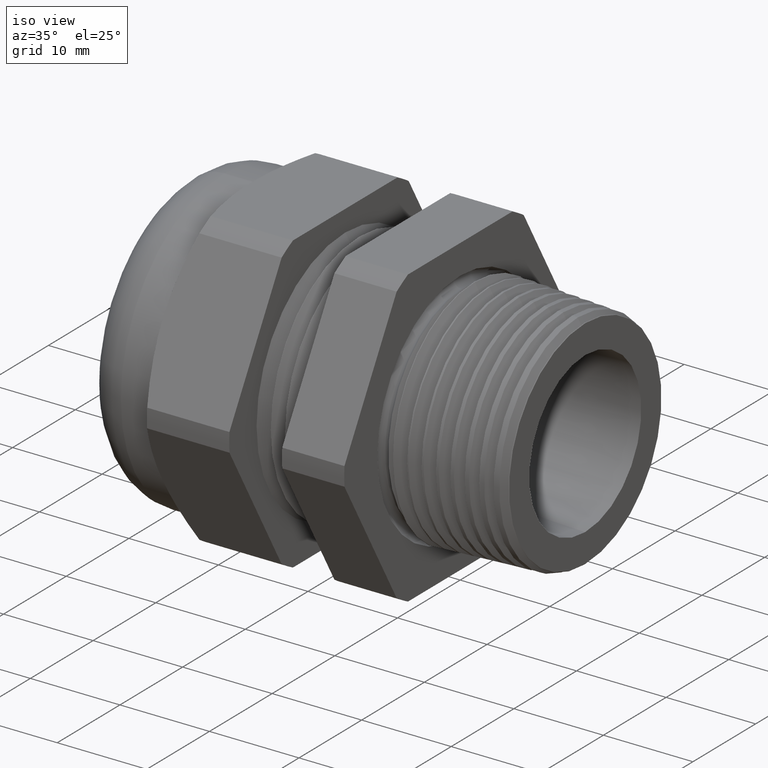
[diagram: clean part render]
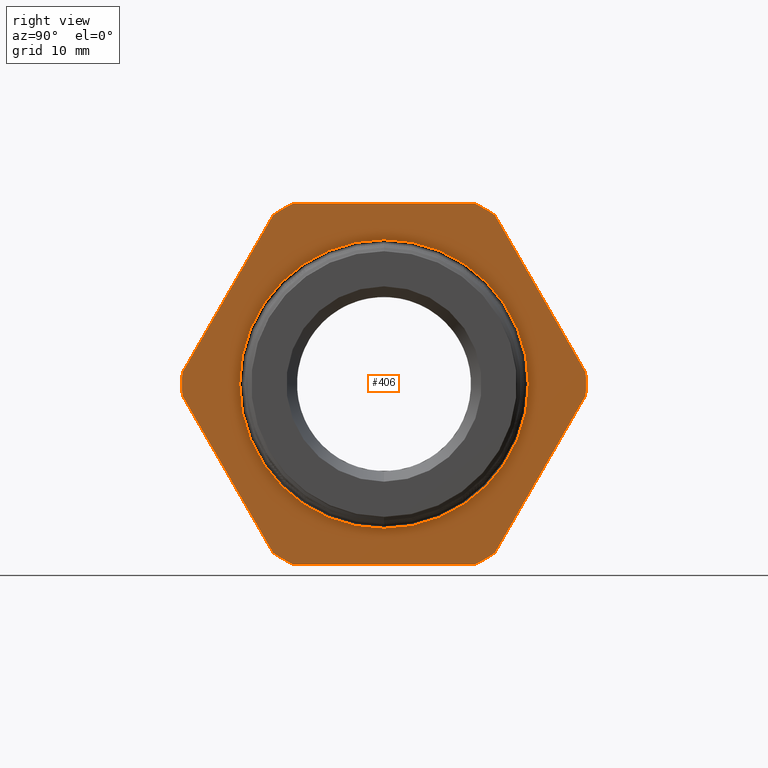
[diagram: tour spotlight — one face highlighted and labeled with its STEP entity id]
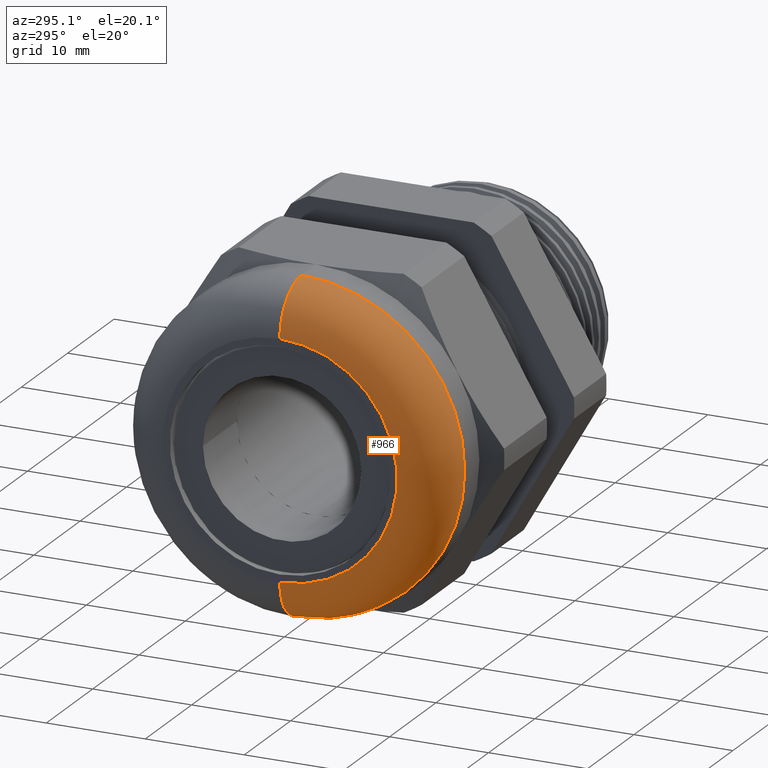
[diagram: tour spotlight — one face highlighted and labeled with its STEP entity id]
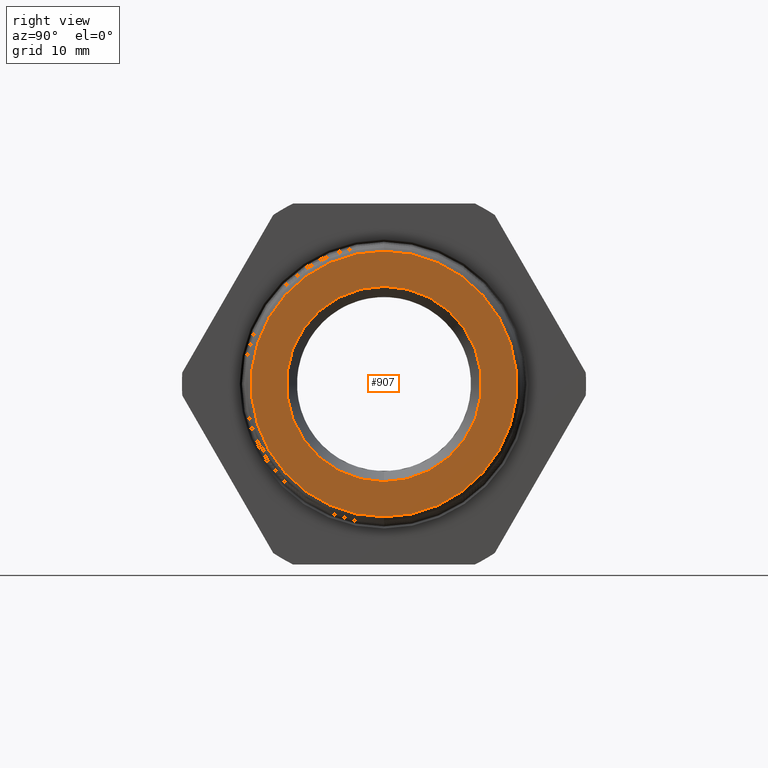
[diagram: tour spotlight — one face highlighted and labeled with its STEP entity id]
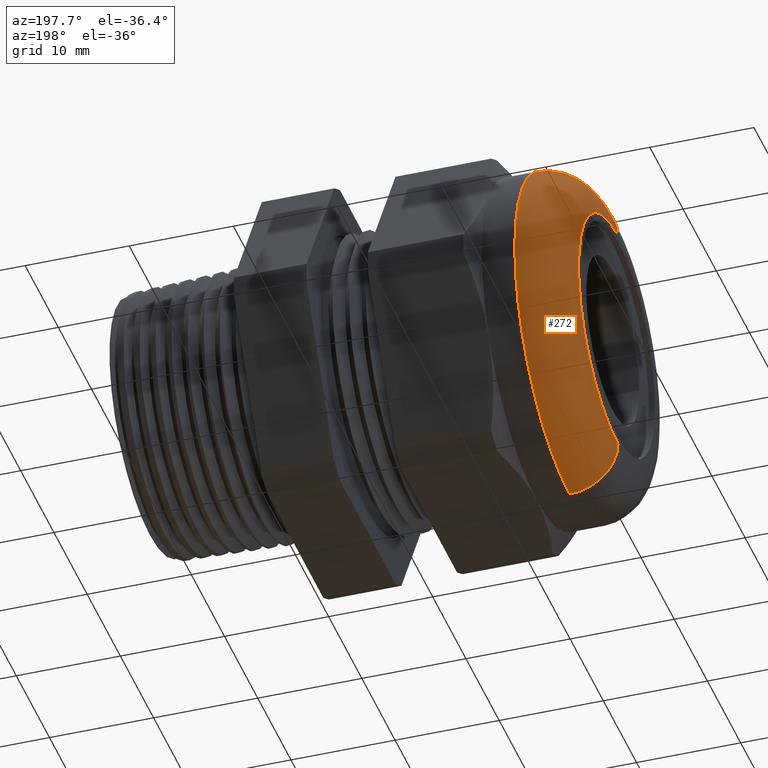
[diagram: tour spotlight — one face highlighted and labeled with its STEP entity id]
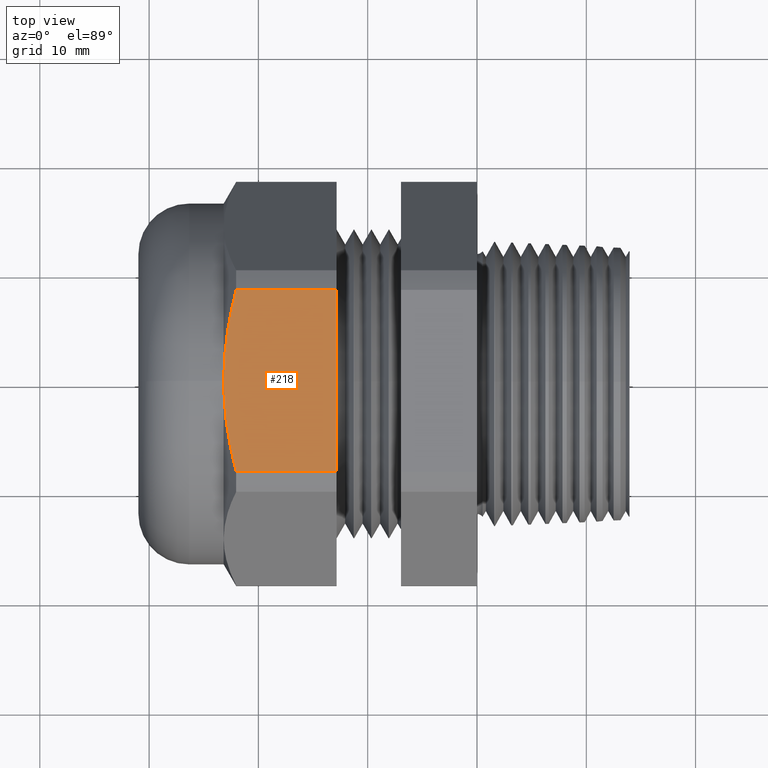
[diagram: tour spotlight — one face highlighted and labeled with its STEP entity id]
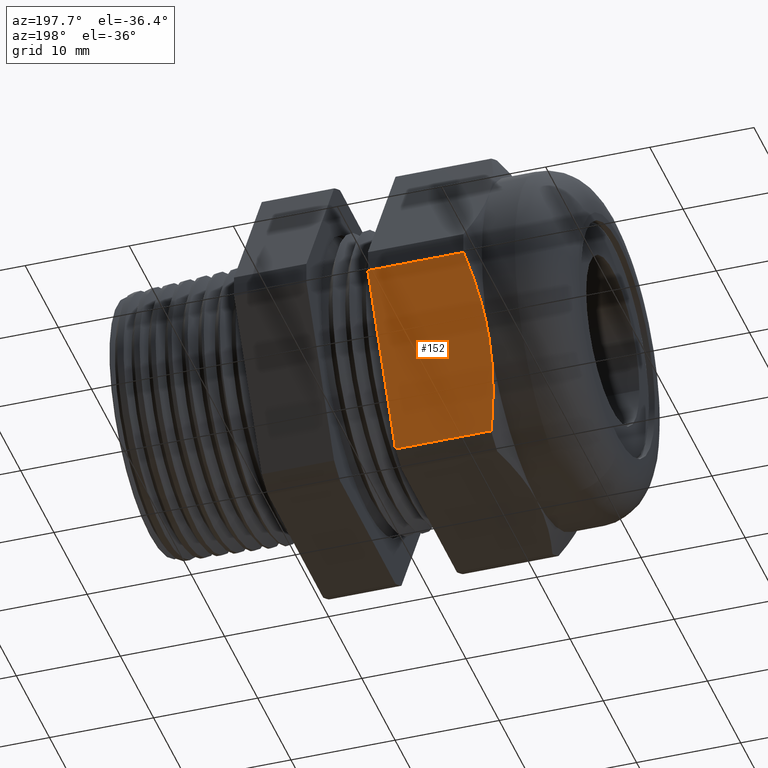
[diagram: tour spotlight — one face highlighted and labeled with its STEP entity id]
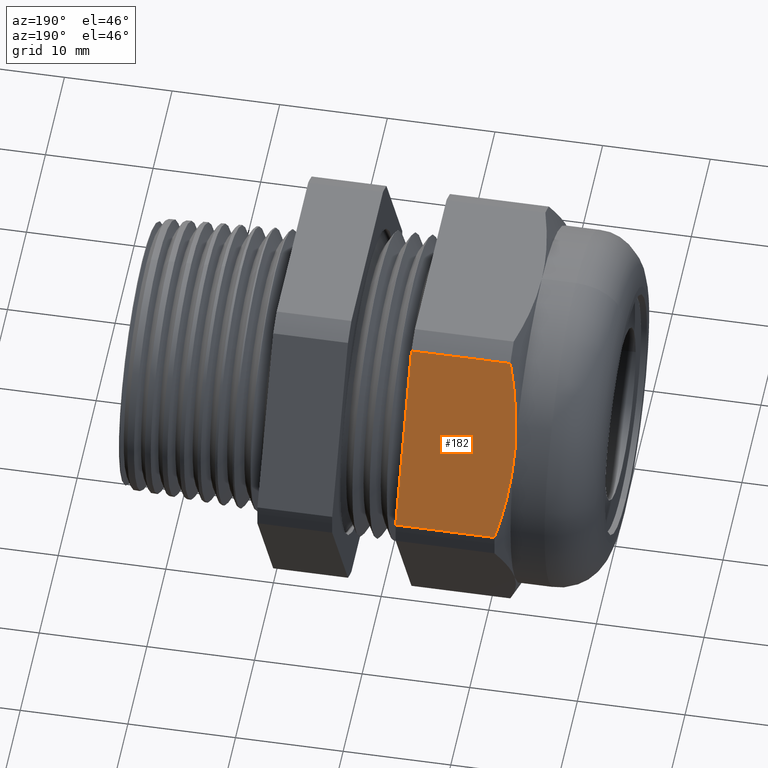
[diagram: tour spotlight — one face highlighted and labeled with its STEP entity id]
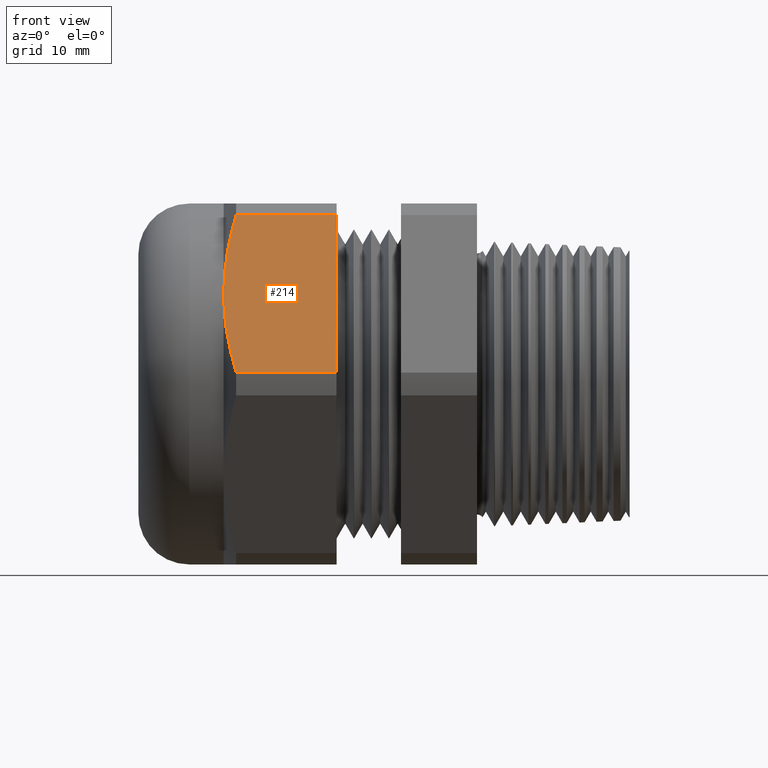
[diagram: tour spotlight — one face highlighted and labeled with its STEP entity id]
A machine part: a face-by-face anatomy tour. The part has 136 B-rep faces; the first image is the clean iso view, then the 8 largest visible faces are spotlighted one at a time (largest first), each with its STEP entity span.

Face 1 — right view, entity #406. In plain terms, the highlighted planar face has unit normal (-1, 0, 0).
Definition (entity closure, byte-faithful):
#1 = EDGE_CURVE ( 'NONE', #6, #106, #1298, .T. ) ;
#3 = ORIENTED_EDGE ( 'NONE', *, *, #1, .T. ) ;
#6 = VERTEX_POINT ( 'NONE', #1356 ) ;
#7 = ORIENTED_EDGE ( 'NONE', *, *, #12, .F. ) ;
#8 = ORIENTED_EDGE ( 'NONE', *, *, #13, .T. ) ;
#12 = EDGE_CURVE ( 'NONE', #6, #420, #1355, .T. ) ;
#13 = EDGE_CURVE ( 'NONE', #419, #420, #1350, .T. ) ;
#102 = VERTEX_POINT ( 'NONE', #1488 ) ;
#103 = VERTEX_POINT ( 'NONE', #1487 ) ;
#104 = EDGE_CURVE ( 'NONE', #103, #106, #1486, .T. ) ;
#105 = ORIENTED_EDGE ( 'NONE', *, *, #104, .F. ) ;
#106 = VERTEX_POINT ( 'NONE', #1545 ) ;
#347 = ORIENTED_EDGE ( 'NONE', *, *, #348, .T. ) ;
#348 = EDGE_CURVE ( 'NONE', #103, #102, #2011, .T. ) ;
#349 = ORIENTED_EDGE ( 'NONE', *, *, #350, .F. ) ;
#350 = EDGE_CURVE ( 'NONE', #351, #102, #2002, .T. ) ;
#351 = VERTEX_POINT ( 'NONE', #2064 ) ;
#352 = ORIENTED_EDGE ( 'NONE', *, *, #370, .T. ) ;
#353 = VERTEX_POINT ( 'NONE', #2063 ) ;
#359 = ORIENTED_EDGE ( 'NONE', *, *, #360, .F. ) ;
#360 = EDGE_CURVE ( 'NONE', #745, #751, #2055, .T. ) ;
#361 = ORIENTED_EDGE ( 'NONE', *, *, #744, .F. ) ;
#370 = EDGE_CURVE ( 'NONE', #351, #353, #2035, .T. ) ;
#371 = ORIENTED_EDGE ( 'NONE', *, *, #372, .F. ) ;
#372 = EDGE_CURVE ( 'NONE', #409, #353, #2092, .T. ) ;
#373 = EDGE_LOOP ( 'NONE', ( #359, #361 ) ) ;
#406 = ADVANCED_FACE ( 'NONE', ( #2152, #2151 ), #2150, .F. ) ;
#407 = ORIENTED_EDGE ( 'NONE', *, *, #408, .T. ) ;
#408 = EDGE_CURVE ( 'NONE', #409, #410, #2145, .T. ) ;
#409 = VERTEX_POINT ( 'NONE', #2141 ) ;
#410 = VERTEX_POINT ( 'NONE', #2140 ) ;
#411 = ORIENTED_EDGE ( 'NONE', *, *, #412, .F. ) ;
#412 = EDGE_CURVE ( 'NONE', #413, #410, #2139, .T. ) ;
#413 = VERTEX_POINT ( 'NONE', #2134 ) ;
#414 = ORIENTED_EDGE ( 'NONE', *, *, #415, .T. ) ;
#415 = EDGE_CURVE ( 'NONE', #413, #416, #2133, .T. ) ;
#416 = VERTEX_POINT ( 'NONE', #2129 ) ;
#417 = ORIENTED_EDGE ( 'NONE', *, *, #418, .F. ) ;
#418 = EDGE_CURVE ( 'NONE', #419, #416, #2193, .T. ) ;
#419 = VERTEX_POINT ( 'NONE', #2188 ) ;
#420 = VERTEX_POINT ( 'NONE', #2187 ) ;
#424 = EDGE_LOOP ( 'NONE', ( #407, #411, #414, #417, #8, #7, #3, #105, #347, #349, #352, #371 ) ) ;
#744 = EDGE_CURVE ( 'NONE', #751, #745, #2816, .T. ) ;
#745 = VERTEX_POINT ( 'NONE', #2811 ) ;
#751 = VERTEX_POINT ( 'NONE', #2799 ) ;
#1295 = DIRECTION ( 'NONE',  ( 0.0000000000000000000, -0.5000000000000003300, 0.8660254037844383700 ) ) ;
#1296 = VECTOR ( 'NONE', #1295, 39.37007874015748100 ) ;
#1297 = CARTESIAN_POINT ( 'NONE',  ( 0.0000000000000000000, 0.7268402752278256800, 0.04107571431805962700 ) ) ;
#1298 = LINE ( 'NONE', #1297, #1296 ) ;
#1347 = DIRECTION ( 'NONE',  ( 0.0000000000000000000, 0.5000000000000001100, 0.8660254037844386000 ) ) ;
#1348 = VECTOR ( 'NONE', #1347, 39.37007874015748100 ) ;
#1349 = CARTESIAN_POINT ( 'NONE',  ( 0.0000000000000000000, 0.3989927496919443200, -0.6089242856819405700 ) ) ;
#1350 = LINE ( 'NONE', #1349, #1348 ) ;
#1351 = DIRECTION ( 'NONE',  ( 0.0000000000000000000, 0.0000000000000000000, 1.000000000000000000 ) ) ;
#1352 = DIRECTION ( 'NONE',  ( -1.000000000000000000, 0.0000000000000000000, 0.0000000000000000000 ) ) ;
#1353 = CARTESIAN_POINT ( 'NONE',  ( 0.0000000000000000000, 0.0000000000000000000, 0.0000000000000000000 ) ) ;
#1354 = AXIS2_PLACEMENT_3D ( 'NONE', #1353, #1352, #1351 ) ;
#1355 = CIRCLE ( 'NONE', #1354, 0.7280000000000000900 ) ;
#1356 = CARTESIAN_POINT ( 'NONE',  ( 0.0000000000000000000, 0.7268402752278255700, 0.04107571431805956400 ) ) ;
#1485 = AXIS2_PLACEMENT_3D ( 'NONE', #1548, #1547, #1546 ) ;
#1486 = CIRCLE ( 'NONE', #1485, 0.7280000000000000900 ) ;
#1487 = CARTESIAN_POINT ( 'NONE',  ( 0.0000000000000000000, 0.3278475255358810900, 0.6500000000000000200 ) ) ;
#1488 = CARTESIAN_POINT ( 'NONE',  ( 0.0000000000000000000, -0.3278475255358810900, 0.6500000000000000200 ) ) ;
#1516 = DIRECTION ( 'NONE',  ( 0.0000000000000000000, 0.0000000000000000000, 1.000000000000000000 ) ) ;
#1517 = DIRECTION ( 'NONE',  ( -1.000000000000000000, 0.0000000000000000000, 0.0000000000000000000 ) ) ;
#1518 = CARTESIAN_POINT ( 'NONE',  ( 0.0000000000000000000, 0.0000000000000000000, 0.0000000000000000000 ) ) ;
#1545 = CARTESIAN_POINT ( 'NONE',  ( 0.0000000000000000000, 0.3989927496919443200, 0.6089242856819405700 ) ) ;
#1546 = DIRECTION ( 'NONE',  ( 0.0000000000000000000, 0.0000000000000000000, 1.000000000000000000 ) ) ;
#1547 = DIRECTION ( 'NONE',  ( -1.000000000000000000, 0.0000000000000000000, 0.0000000000000000000 ) ) ;
#1548 = CARTESIAN_POINT ( 'NONE',  ( 0.0000000000000000000, 0.0000000000000000000, 0.0000000000000000000 ) ) ;
#2001 = AXIS2_PLACEMENT_3D ( 'NONE', #1518, #1517, #1516 ) ;
#2002 = CIRCLE ( 'NONE', #2001, 0.7280000000000000900 ) ;
#2004 = DIRECTION ( 'NONE',  ( 0.0000000000000000000, -1.000000000000000000, 0.0000000000000000000 ) ) ;
#2005 = VECTOR ( 'NONE', #2004, 39.37007874015748100 ) ;
#2006 = CARTESIAN_POINT ( 'NONE',  ( 0.0000000000000000000, 0.3278475255358810900, 0.6500000000000000200 ) ) ;
#2011 = LINE ( 'NONE', #2006, #2005 ) ;
#2035 = LINE ( 'NONE', #2095, #2094 ) ;
#2047 = DIRECTION ( 'NONE',  ( 0.0000000000000000000, 0.0000000000000000000, 1.000000000000000000 ) ) ;
#2048 = DIRECTION ( 'NONE',  ( 1.000000000000000000, 0.0000000000000000000, 0.0000000000000000000 ) ) ;
#2049 = CARTESIAN_POINT ( 'NONE',  ( -1.707404996040164500E-017, 0.0000000000000000000, 0.0000000000000000000 ) ) ;
#2050 = AXIS2_PLACEMENT_3D ( 'NONE', #2049, #2048, #2047 ) ;
#2055 = CIRCLE ( 'NONE', #2050, 0.5199999999999999100 ) ;
#2063 = CARTESIAN_POINT ( 'NONE',  ( 0.0000000000000000000, -0.7268402752278255700, 0.04107571431805941800 ) ) ;
#2064 = CARTESIAN_POINT ( 'NONE',  ( 0.0000000000000000000, -0.3989927496919443200, 0.6089242856819405700 ) ) ;
#2088 = DIRECTION ( 'NONE',  ( 0.0000000000000000000, 0.0000000000000000000, 1.000000000000000000 ) ) ;
#2089 = DIRECTION ( 'NONE',  ( -1.000000000000000000, 0.0000000000000000000, 0.0000000000000000000 ) ) ;
#2090 = CARTESIAN_POINT ( 'NONE',  ( 0.0000000000000000000, 0.0000000000000000000, 0.0000000000000000000 ) ) ;
#2091 = AXIS2_PLACEMENT_3D ( 'NONE', #2090, #2089, #2088 ) ;
#2092 = CIRCLE ( 'NONE', #2091, 0.7280000000000000900 ) ;
#2093 = DIRECTION ( 'NONE',  ( 0.0000000000000000000, -0.4999999999999998300, -0.8660254037844386000 ) ) ;
#2094 = VECTOR ( 'NONE', #2093, 39.37007874015748900 ) ;
#2095 = CARTESIAN_POINT ( 'NONE',  ( 0.0000000000000000000, -0.3989927496919445400, 0.6089242856819404600 ) ) ;
#2129 = CARTESIAN_POINT ( 'NONE',  ( 0.0000000000000000000, 0.3278475255358816500, -0.6499999999999998000 ) ) ;
#2130 = DIRECTION ( 'NONE',  ( 0.0000000000000000000, 1.000000000000000000, 0.0000000000000000000 ) ) ;
#2131 = VECTOR ( 'NONE', #2130, 39.37007874015748100 ) ;
#2132 = CARTESIAN_POINT ( 'NONE',  ( 0.0000000000000000000, -0.3278475255358816500, -0.6499999999999998000 ) ) ;
#2133 = LINE ( 'NONE', #2132, #2131 ) ;
#2134 = CARTESIAN_POINT ( 'NONE',  ( 0.0000000000000000000, -0.3278475255358817600, -0.6499999999999995800 ) ) ;
#2135 = DIRECTION ( 'NONE',  ( 0.0000000000000000000, 0.0000000000000000000, 1.000000000000000000 ) ) ;
#2136 = DIRECTION ( 'NONE',  ( -1.000000000000000000, 0.0000000000000000000, 0.0000000000000000000 ) ) ;
#2137 = CARTESIAN_POINT ( 'NONE',  ( 0.0000000000000000000, 0.0000000000000000000, 0.0000000000000000000 ) ) ;
#2138 = AXIS2_PLACEMENT_3D ( 'NONE', #2137, #2136, #2135 ) ;
#2139 = CIRCLE ( 'NONE', #2138, 0.7280000000000000900 ) ;
#2140 = CARTESIAN_POINT ( 'NONE',  ( 0.0000000000000000000, -0.3989927496919445400, -0.6089242856819404600 ) ) ;
#2141 = CARTESIAN_POINT ( 'NONE',  ( 0.0000000000000000000, -0.7268402752278256800, -0.04107571431805968900 ) ) ;
#2142 = DIRECTION ( 'NONE',  ( 0.0000000000000000000, 0.5000000000000001100, -0.8660254037844386000 ) ) ;
#2143 = VECTOR ( 'NONE', #2142, 39.37007874015748100 ) ;
#2144 = CARTESIAN_POINT ( 'NONE',  ( 0.0000000000000000000, -0.7268402752278255700, -0.04107571431805972400 ) ) ;
#2145 = LINE ( 'NONE', #2144, #2143 ) ;
#2146 = DIRECTION ( 'NONE',  ( 0.0000000000000000000, 0.0000000000000000000, 1.000000000000000000 ) ) ;
#2147 = DIRECTION ( 'NONE',  ( -1.000000000000000000, 0.0000000000000000000, 0.0000000000000000000 ) ) ;
#2148 = CARTESIAN_POINT ( 'NONE',  ( -1.707404996040164500E-017, 0.7280000000000000900, 0.0000000000000000000 ) ) ;
#2149 = AXIS2_PLACEMENT_3D ( 'NONE', #2148, #2147, #2146 ) ;
#2150 = PLANE ( 'NONE',  #2149 ) ;
#2151 = FACE_BOUND ( 'NONE', #373, .T. ) ;
#2152 = FACE_OUTER_BOUND ( 'NONE', #424, .T. ) ;
#2187 = CARTESIAN_POINT ( 'NONE',  ( 0.0000000000000000000, 0.7268402752278256800, -0.04107571431805931400 ) ) ;
#2188 = CARTESIAN_POINT ( 'NONE',  ( 0.0000000000000000000, 0.3989927496919443200, -0.6089242856819405700 ) ) ;
#2189 = DIRECTION ( 'NONE',  ( 0.0000000000000000000, 0.0000000000000000000, 1.000000000000000000 ) ) ;
#2190 = DIRECTION ( 'NONE',  ( -1.000000000000000000, 0.0000000000000000000, 0.0000000000000000000 ) ) ;
#2191 = CARTESIAN_POINT ( 'NONE',  ( 0.0000000000000000000, 0.0000000000000000000, 0.0000000000000000000 ) ) ;
#2192 = AXIS2_PLACEMENT_3D ( 'NONE', #2191, #2190, #2189 ) ;
#2193 = CIRCLE ( 'NONE', #2192, 0.7280000000000000900 ) ;
#2799 = CARTESIAN_POINT ( 'NONE',  ( -1.707404996040164500E-017, 6.368163355566234900E-017, 0.5199999999999999100 ) ) ;
#2811 = CARTESIAN_POINT ( 'NONE',  ( -1.707404996040164500E-017, 0.0000000000000000000, -0.5199999999999999100 ) ) ;
#2812 = DIRECTION ( 'NONE',  ( 0.0000000000000000000, 0.0000000000000000000, 1.000000000000000000 ) ) ;
#2813 = DIRECTION ( 'NONE',  ( 1.000000000000000000, 0.0000000000000000000, 0.0000000000000000000 ) ) ;
#2814 = CARTESIAN_POINT ( 'NONE',  ( -1.707404996040164500E-017, 0.0000000000000000000, 0.0000000000000000000 ) ) ;
#2815 = AXIS2_PLACEMENT_3D ( 'NONE', #2814, #2813, #2812 ) ;
#2816 = CIRCLE ( 'NONE', #2815, 0.5199999999999999100 ) ;

Face 2 — auxiliary view, entity #966. In plain terms, the highlighted toroidal blend (fillet) surface has major radius 11.8618 mm and minor (blend) radius 4.6482 mm.
Definition (entity closure, byte-faithful):
#265 = EDGE_CURVE ( 'NONE', #271, #333, #1902, .T. ) ;
#267 = VERTEX_POINT ( 'NONE', #1897 ) ;
#271 = VERTEX_POINT ( 'NONE', #1892 ) ;
#330 = VERTEX_POINT ( 'NONE', #1975 ) ;
#332 = EDGE_CURVE ( 'NONE', #267, #330, #1974, .T. ) ;
#333 = VERTEX_POINT ( 'NONE', #2033 ) ;
#793 = EDGE_CURVE ( 'NONE', #267, #271, #2911, .T. ) ;
#924 = EDGE_CURVE ( 'NONE', #333, #330, #3073, .T. ) ;
#966 = ADVANCED_FACE ( 'NONE', ( #3151 ), #3146, .T. ) ;
#967 = EDGE_LOOP ( 'NONE', ( #968, #969, #970, #971 ) ) ;
#968 = ORIENTED_EDGE ( 'NONE', *, *, #265, .F. ) ;
#969 = ORIENTED_EDGE ( 'NONE', *, *, #793, .F. ) ;
#970 = ORIENTED_EDGE ( 'NONE', *, *, #332, .T. ) ;
#971 = ORIENTED_EDGE ( 'NONE', *, *, #924, .F. ) ;
#1892 = CARTESIAN_POINT ( 'NONE',  ( -1.220000000000000000, 6.839652373237965500E-017, 0.4669999999999998000 ) ) ;
#1897 = CARTESIAN_POINT ( 'NONE',  ( -1.220000000000000000, 0.0000000000000000000, -0.4669999999999998000 ) ) ;
#1898 = DIRECTION ( 'NONE',  ( 0.0000000000000000000, 1.224646799147353000E-016, 1.000000000000000000 ) ) ;
#1899 = DIRECTION ( 'NONE',  ( 0.0000000000000000000, 1.000000000000000000, -1.224646799147353200E-016 ) ) ;
#1900 = CARTESIAN_POINT ( 'NONE',  ( -1.036999999999999900, 5.719100552018136700E-017, 0.4669999999999998000 ) ) ;
#1901 = AXIS2_PLACEMENT_3D ( 'NONE', #1900, #1899, #1898 ) ;
#1902 = CIRCLE ( 'NONE', #1901, 0.1830000000000000800 ) ;
#1970 = DIRECTION ( 'NONE',  ( 0.0000000000000000000, 0.0000000000000000000, -1.000000000000000000 ) ) ;
#1971 = DIRECTION ( 'NONE',  ( 0.0000000000000000000, -1.000000000000000000, 0.0000000000000000000 ) ) ;
#1972 = CARTESIAN_POINT ( 'NONE',  ( -1.036999999999999900, 0.0000000000000000000, -0.4669999999999998000 ) ) ;
#1973 = AXIS2_PLACEMENT_3D ( 'NONE', #1972, #1971, #1970 ) ;
#1974 = CIRCLE ( 'NONE', #1973, 0.1830000000000000800 ) ;
#1975 = CARTESIAN_POINT ( 'NONE',  ( -1.036999999999999900, 7.960204194457794200E-017, -0.6499999999999999100 ) ) ;
#2033 = CARTESIAN_POINT ( 'NONE',  ( -1.036999999999999900, 0.0000000000000000000, 0.6499999999999999100 ) ) ;
#2907 = DIRECTION ( 'NONE',  ( 0.0000000000000000000, 0.0000000000000000000, -1.000000000000000000 ) ) ;
#2908 = DIRECTION ( 'NONE',  ( -1.000000000000000000, 0.0000000000000000000, 0.0000000000000000000 ) ) ;
#2909 = CARTESIAN_POINT ( 'NONE',  ( -1.220000000000000000, 0.0000000000000000000, 0.0000000000000000000 ) ) ;
#2910 = AXIS2_PLACEMENT_3D ( 'NONE', #2909, #2908, #2907 ) ;
#2911 = CIRCLE ( 'NONE', #2910, 0.4669999999999998000 ) ;
#3069 = DIRECTION ( 'NONE',  ( 0.0000000000000000000, 0.0000000000000000000, -1.000000000000000000 ) ) ;
#3070 = DIRECTION ( 'NONE',  ( 1.000000000000000000, 0.0000000000000000000, 0.0000000000000000000 ) ) ;
#3071 = CARTESIAN_POINT ( 'NONE',  ( -1.036999999999999900, 0.0000000000000000000, 0.0000000000000000000 ) ) ;
#3072 = AXIS2_PLACEMENT_3D ( 'NONE', #3071, #3070, #3069 ) ;
#3073 = CIRCLE ( 'NONE', #3072, 0.6499999999999999100 ) ;
#3142 = DIRECTION ( 'NONE',  ( 0.0000000000000000000, 0.0000000000000000000, -1.000000000000000000 ) ) ;
#3143 = DIRECTION ( 'NONE',  ( 1.000000000000000000, 0.0000000000000000000, 0.0000000000000000000 ) ) ;
#3144 = CARTESIAN_POINT ( 'NONE',  ( -1.036999999999999900, 0.0000000000000000000, 0.0000000000000000000 ) ) ;
#3145 = AXIS2_PLACEMENT_3D ( 'NONE', #3144, #3143, #3142 ) ;
#3146 = TOROIDAL_SURFACE ( 'NONE', #3145, 0.4669999999999998000, 0.1830000000000000800 ) ;
#3151 = FACE_OUTER_BOUND ( 'NONE', #967, .T. ) ;

Face 3 — right view, entity #907. In plain terms, the highlighted planar face has unit normal (-1, 0, 0).
Definition (entity closure, byte-faithful):
#15 = EDGE_CURVE ( 'NONE', #368, #377, #1346, .T. ) ;
#43 = VERTEX_POINT ( 'NONE', #1363 ) ;
#49 = VERTEX_POINT ( 'NONE', #1414 ) ;
#56 = EDGE_CURVE ( 'NONE', #49, #43, #1401, .T. ) ;
#368 = VERTEX_POINT ( 'NONE', #2036 ) ;
#377 = VERTEX_POINT ( 'NONE', #2081 ) ;
#452 = EDGE_CURVE ( 'NONE', #377, #368, #2252, .T. ) ;
#835 = ORIENTED_EDGE ( 'NONE', *, *, #452, .T. ) ;
#836 = ORIENTED_EDGE ( 'NONE', *, *, #15, .T. ) ;
#837 = EDGE_LOOP ( 'NONE', ( #838, #839 ) ) ;
#838 = ORIENTED_EDGE ( 'NONE', *, *, #56, .T. ) ;
#839 = ORIENTED_EDGE ( 'NONE', *, *, #906, .T. ) ;
#906 = EDGE_CURVE ( 'NONE', #43, #49, #3036, .T. ) ;
#907 = ADVANCED_FACE ( 'NONE', ( #3031, #3030 ), #3029, .F. ) ;
#908 = EDGE_LOOP ( 'NONE', ( #835, #836 ) ) ;
#1342 = DIRECTION ( 'NONE',  ( 0.0000000000000000000, 0.0000000000000000000, 1.000000000000000000 ) ) ;
#1343 = DIRECTION ( 'NONE',  ( 1.000000000000000000, 0.0000000000000000000, 0.0000000000000000000 ) ) ;
#1344 = CARTESIAN_POINT ( 'NONE',  ( 0.5500000000000000400, 0.0000000000000000000, 0.0000000000000000000 ) ) ;
#1345 = AXIS2_PLACEMENT_3D ( 'NONE', #1344, #1343, #1342 ) ;
#1346 = CIRCLE ( 'NONE', #1345, 0.4784864814003184100 ) ;
#1363 = CARTESIAN_POINT ( 'NONE',  ( 0.5500000000000001600, 4.309170967924009200E-017, 0.3518705124550377500 ) ) ;
#1397 = DIRECTION ( 'NONE',  ( 0.0000000000000000000, 0.0000000000000000000, 1.000000000000000000 ) ) ;
#1398 = DIRECTION ( 'NONE',  ( -1.000000000000000000, 0.0000000000000000000, 0.0000000000000000000 ) ) ;
#1399 = CARTESIAN_POINT ( 'NONE',  ( 0.5500000000000001600, 0.0000000000000000000, 0.0000000000000000000 ) ) ;
#1400 = AXIS2_PLACEMENT_3D ( 'NONE', #1399, #1398, #1397 ) ;
#1401 = CIRCLE ( 'NONE', #1400, 0.3518705124550377500 ) ;
#1414 = CARTESIAN_POINT ( 'NONE',  ( 0.5500000000000001600, 0.0000000000000000000, -0.3518705124550377500 ) ) ;
#2036 = CARTESIAN_POINT ( 'NONE',  ( 0.5500000000000000400, 5.873035001460818100E-017, -0.4784864814003184100 ) ) ;
#2081 = CARTESIAN_POINT ( 'NONE',  ( 0.5500000000000000400, 0.0000000000000000000, 0.4784864814003184100 ) ) ;
#2248 = DIRECTION ( 'NONE',  ( 0.0000000000000000000, 0.0000000000000000000, 1.000000000000000000 ) ) ;
#2249 = DIRECTION ( 'NONE',  ( 1.000000000000000000, 0.0000000000000000000, 0.0000000000000000000 ) ) ;
#2250 = CARTESIAN_POINT ( 'NONE',  ( 0.5500000000000000400, 0.0000000000000000000, 0.0000000000000000000 ) ) ;
#2251 = AXIS2_PLACEMENT_3D ( 'NONE', #2250, #2249, #2248 ) ;
#2252 = CIRCLE ( 'NONE', #2251, 0.4784864814003184100 ) ;
#3025 = DIRECTION ( 'NONE',  ( 0.0000000000000000000, 0.0000000000000000000, 1.000000000000000000 ) ) ;
#3026 = DIRECTION ( 'NONE',  ( -1.000000000000000000, 0.0000000000000000000, 0.0000000000000000000 ) ) ;
#3027 = CARTESIAN_POINT ( 'NONE',  ( 0.5500000000000000400, 0.4909864814003183600, 0.0000000000000000000 ) ) ;
#3028 = AXIS2_PLACEMENT_3D ( 'NONE', #3027, #3026, #3025 ) ;
#3029 = PLANE ( 'NONE',  #3028 ) ;
#3030 = FACE_BOUND ( 'NONE', #837, .T. ) ;
#3031 = FACE_OUTER_BOUND ( 'NONE', #908, .T. ) ;
#3032 = DIRECTION ( 'NONE',  ( 0.0000000000000000000, 0.0000000000000000000, 1.000000000000000000 ) ) ;
#3033 = DIRECTION ( 'NONE',  ( -1.000000000000000000, 0.0000000000000000000, 0.0000000000000000000 ) ) ;
#3034 = CARTESIAN_POINT ( 'NONE',  ( 0.5500000000000001600, 0.0000000000000000000, 0.0000000000000000000 ) ) ;
#3035 = AXIS2_PLACEMENT_3D ( 'NONE', #3034, #3033, #3032 ) ;
#3036 = CIRCLE ( 'NONE', #3035, 0.3518705124550377500 ) ;

Face 4 — auxiliary view, entity #272. In plain terms, the highlighted toroidal blend (fillet) surface has major radius 11.8618 mm and minor (blend) radius 4.6482 mm.
Definition (entity closure, byte-faithful):
#265 = EDGE_CURVE ( 'NONE', #271, #333, #1902, .T. ) ;
#266 = ORIENTED_EDGE ( 'NONE', *, *, #265, .T. ) ;
#267 = VERTEX_POINT ( 'NONE', #1897 ) ;
#270 = EDGE_LOOP ( 'NONE', ( #273, #266, #328, #331 ) ) ;
#271 = VERTEX_POINT ( 'NONE', #1892 ) ;
#272 = ADVANCED_FACE ( 'NONE', ( #1891 ), #1890, .T. ) ;
#273 = ORIENTED_EDGE ( 'NONE', *, *, #274, .F. ) ;
#274 = EDGE_CURVE ( 'NONE', #271, #267, #1884, .T. ) ;
#328 = ORIENTED_EDGE ( 'NONE', *, *, #329, .F. ) ;
#329 = EDGE_CURVE ( 'NONE', #330, #333, #1980, .T. ) ;
#330 = VERTEX_POINT ( 'NONE', #1975 ) ;
#331 = ORIENTED_EDGE ( 'NONE', *, *, #332, .F. ) ;
#332 = EDGE_CURVE ( 'NONE', #267, #330, #1974, .T. ) ;
#333 = VERTEX_POINT ( 'NONE', #2033 ) ;
#1881 = DIRECTION ( 'NONE',  ( 0.0000000000000000000, 0.0000000000000000000, -1.000000000000000000 ) ) ;
#1882 = DIRECTION ( 'NONE',  ( -1.000000000000000000, 0.0000000000000000000, 0.0000000000000000000 ) ) ;
#1883 = AXIS2_PLACEMENT_3D ( 'NONE', #1889, #1882, #1881 ) ;
#1884 = CIRCLE ( 'NONE', #1883, 0.4669999999999998000 ) ;
#1885 = DIRECTION ( 'NONE',  ( 0.0000000000000000000, 0.0000000000000000000, -1.000000000000000000 ) ) ;
#1886 = DIRECTION ( 'NONE',  ( 1.000000000000000000, 0.0000000000000000000, 0.0000000000000000000 ) ) ;
#1887 = CARTESIAN_POINT ( 'NONE',  ( -1.036999999999999900, 0.0000000000000000000, 0.0000000000000000000 ) ) ;
#1888 = AXIS2_PLACEMENT_3D ( 'NONE', #1887, #1886, #1885 ) ;
#1889 = CARTESIAN_POINT ( 'NONE',  ( -1.220000000000000000, 0.0000000000000000000, 0.0000000000000000000 ) ) ;
#1890 = TOROIDAL_SURFACE ( 'NONE', #1888, 0.4669999999999998000, 0.1830000000000000800 ) ;
#1891 = FACE_OUTER_BOUND ( 'NONE', #270, .T. ) ;
#1892 = CARTESIAN_POINT ( 'NONE',  ( -1.220000000000000000, 6.839652373237965500E-017, 0.4669999999999998000 ) ) ;
#1897 = CARTESIAN_POINT ( 'NONE',  ( -1.220000000000000000, 0.0000000000000000000, -0.4669999999999998000 ) ) ;
#1898 = DIRECTION ( 'NONE',  ( 0.0000000000000000000, 1.224646799147353000E-016, 1.000000000000000000 ) ) ;
#1899 = DIRECTION ( 'NONE',  ( 0.0000000000000000000, 1.000000000000000000, -1.224646799147353200E-016 ) ) ;
#1900 = CARTESIAN_POINT ( 'NONE',  ( -1.036999999999999900, 5.719100552018136700E-017, 0.4669999999999998000 ) ) ;
#1901 = AXIS2_PLACEMENT_3D ( 'NONE', #1900, #1899, #1898 ) ;
#1902 = CIRCLE ( 'NONE', #1901, 0.1830000000000000800 ) ;
#1970 = DIRECTION ( 'NONE',  ( 0.0000000000000000000, 0.0000000000000000000, -1.000000000000000000 ) ) ;
#1971 = DIRECTION ( 'NONE',  ( 0.0000000000000000000, -1.000000000000000000, 0.0000000000000000000 ) ) ;
#1972 = CARTESIAN_POINT ( 'NONE',  ( -1.036999999999999900, 0.0000000000000000000, -0.4669999999999998000 ) ) ;
#1973 = AXIS2_PLACEMENT_3D ( 'NONE', #1972, #1971, #1970 ) ;
#1974 = CIRCLE ( 'NONE', #1973, 0.1830000000000000800 ) ;
#1975 = CARTESIAN_POINT ( 'NONE',  ( -1.036999999999999900, 7.960204194457794200E-017, -0.6499999999999999100 ) ) ;
#1976 = DIRECTION ( 'NONE',  ( 0.0000000000000000000, 0.0000000000000000000, -1.000000000000000000 ) ) ;
#1977 = DIRECTION ( 'NONE',  ( 1.000000000000000000, 0.0000000000000000000, 0.0000000000000000000 ) ) ;
#1978 = CARTESIAN_POINT ( 'NONE',  ( -1.036999999999999900, 0.0000000000000000000, 0.0000000000000000000 ) ) ;
#1979 = AXIS2_PLACEMENT_3D ( 'NONE', #1978, #1977, #1976 ) ;
#1980 = CIRCLE ( 'NONE', #1979, 0.6499999999999999100 ) ;
#2033 = CARTESIAN_POINT ( 'NONE',  ( -1.036999999999999900, 0.0000000000000000000, 0.6499999999999999100 ) ) ;

Face 5 — top view, entity #218. In plain terms, the highlighted planar face has unit normal (0, 0, 1).
Definition (entity closure, byte-faithful):
#138 = EDGE_LOOP ( 'NONE', ( #139, #140, #142, #144, #145 ) ) ;
#139 = ORIENTED_EDGE ( 'NONE', *, *, #257, .F. ) ;
#140 = ORIENTED_EDGE ( 'NONE', *, *, #141, .T. ) ;
#141 = EDGE_CURVE ( 'NONE', #167, #325, #1598, .T. ) ;
#142 = ORIENTED_EDGE ( 'NONE', *, *, #143, .T. ) ;
#143 = EDGE_CURVE ( 'NONE', #325, #205, #1588, .T. ) ;
#144 = ORIENTED_EDGE ( 'NONE', *, *, #213, .T. ) ;
#145 = ORIENTED_EDGE ( 'NONE', *, *, #146, .T. ) ;
#146 = EDGE_CURVE ( 'NONE', #211, #258, #1589, .T. ) ;
#167 = VERTEX_POINT ( 'NONE', #1648 ) ;
#205 = VERTEX_POINT ( 'NONE', #1769 ) ;
#211 = VERTEX_POINT ( 'NONE', #1758 ) ;
#213 = EDGE_CURVE ( 'NONE', #205, #211, #1757, .T. ) ;
#218 = ADVANCED_FACE ( 'NONE', ( #1807 ), #1806, .T. ) ;
#257 = EDGE_CURVE ( 'NONE', #167, #258, #1854, .T. ) ;
#258 = VERTEX_POINT ( 'NONE', #1850 ) ;
#325 = VERTEX_POINT ( 'NONE', #1986 ) ;
#1583 = CARTESIAN_POINT ( 'NONE',  ( -0.9083882884326687200, -0.1100930136818985400, 0.6500000000000000200 ) ) ;
#1584 = CARTESIAN_POINT ( 'NONE',  ( -0.9125000000000002000, -0.05517076331331379600, 0.6500000000000000200 ) ) ;
#1585 = CARTESIAN_POINT ( 'NONE',  ( -0.9125000000000002000, 0.0000000000000000000, 0.6499999999999998000 ) ) ;
#1586 = DIRECTION ( 'NONE',  ( 0.0000000000000000000, 1.000000000000000000, 0.0000000000000000000 ) ) ;
#1587 = CARTESIAN_POINT ( 'NONE',  ( -0.5058333333333333600, 0.5565000000000001100, 0.6500000000000000200 ) ) ;
#1588 = B_SPLINE_CURVE_WITH_KNOTS ( 'NONE', 3,
 ( #1585, #1584, #1583, #1633, #1632, #1631, #1630, #1629 ),
 .UNSPECIFIED., .F., .F.,
 ( 4, 2, 2, 4 ),
 ( 0.01739181220317291600, 0.02158069912191298200, 0.02367514258128301400, 0.02576958604065304700 ),
 .UNSPECIFIED. ) ;
#1589 = LINE ( 'NONE', #1587, #1628 ) ;
#1590 = CARTESIAN_POINT ( 'NONE',  ( -0.9125000000000002000, 0.0000000000000000000, 0.6499999999999998000 ) ) ;
#1591 = CARTESIAN_POINT ( 'NONE',  ( -0.9124999999999999800, 0.02757395173295356200, 0.6500000000000000200 ) ) ;
#1592 = CARTESIAN_POINT ( 'NONE',  ( -0.9114828998118286200, 0.05520937727278971800, 0.6500000000000000200 ) ) ;
#1593 = CARTESIAN_POINT ( 'NONE',  ( -0.9074366153313306900, 0.1106018392528323700, 0.6500000000000000200 ) ) ;
#1594 = CARTESIAN_POINT ( 'NONE',  ( -0.9043942047105485400, 0.1384053176497997100, 0.6500000000000001300 ) ) ;
#1595 = CARTESIAN_POINT ( 'NONE',  ( -0.8926398588338327900, 0.2207514117670412700, 0.6499999999999999100 ) ) ;
#1596 = CARTESIAN_POINT ( 'NONE',  ( -0.8812974929125846300, 0.2746528903789680100, 0.6500000000000000200 ) ) ;
#1597 = CARTESIAN_POINT ( 'NONE',  ( -0.8674666790032094000, 0.3278475255358810900, 0.6500000000000000200 ) ) ;
#1598 = B_SPLINE_CURVE_WITH_KNOTS ( 'NONE', 3,
 ( #1597, #1596, #1595, #1594, #1593, #1592, #1591, #1590 ),
 .UNSPECIFIED., .F., .F.,
 ( 4, 2, 2, 4 ),
 ( 0.009017509672233225600, 0.01320466093770307100, 0.01529823657043799300, 0.01739181220317291600 ),
 .UNSPECIFIED. ) ;
#1628 = VECTOR ( 'NONE', #1586, 39.37007874015748100 ) ;
#1629 = CARTESIAN_POINT ( 'NONE',  ( -0.8674666790032092800, -0.3278475255358811500, 0.6500000000000001300 ) ) ;
#1630 = CARTESIAN_POINT ( 'NONE',  ( -0.8744367178327194800, -0.3010400885336385600, 0.6499999999999999100 ) ) ;
#1631 = CARTESIAN_POINT ( 'NONE',  ( -0.8807998016950013800, -0.2739378481188157700, 0.6499999999999999100 ) ) ;
#1632 = CARTESIAN_POINT ( 'NONE',  ( -0.8919638526390667500, -0.2194418430247452900, 0.6499999999999999100 ) ) ;
#1633 = CARTESIAN_POINT ( 'NONE',  ( -0.8967461303935011500, -0.1921455035121699100, 0.6499999999999999100 ) ) ;
#1648 = CARTESIAN_POINT ( 'NONE',  ( -0.8674666790032094000, 0.3278475255358810900, 0.6500000000000000200 ) ) ;
#1754 = DIRECTION ( 'NONE',  ( 1.000000000000000000, 0.0000000000000000000, 0.0000000000000000000 ) ) ;
#1755 = VECTOR ( 'NONE', #1754, 39.37007874015748100 ) ;
#1756 = CARTESIAN_POINT ( 'NONE',  ( -2.992185896283379600, -0.3278475255358810900, 0.6500000000000000200 ) ) ;
#1757 = LINE ( 'NONE', #1756, #1755 ) ;
#1758 = CARTESIAN_POINT ( 'NONE',  ( -0.5058333333333331300, -0.3278475255358810900, 0.6500000000000000200 ) ) ;
#1769 = CARTESIAN_POINT ( 'NONE',  ( -0.8674666790032092800, -0.3278475255358811500, 0.6500000000000001300 ) ) ;
#1802 = DIRECTION ( 'NONE',  ( 1.000000000000000000, 0.0000000000000000000, 0.0000000000000000000 ) ) ;
#1803 = DIRECTION ( 'NONE',  ( 0.0000000000000000000, 0.0000000000000000000, 1.000000000000000000 ) ) ;
#1804 = CARTESIAN_POINT ( 'NONE',  ( -2.992185896283379600, 0.3278475255358810900, 0.6500000000000000200 ) ) ;
#1805 = AXIS2_PLACEMENT_3D ( 'NONE', #1804, #1803, #1802 ) ;
#1806 = PLANE ( 'NONE',  #1805 ) ;
#1807 = FACE_OUTER_BOUND ( 'NONE', #138, .T. ) ;
#1850 = CARTESIAN_POINT ( 'NONE',  ( -0.5058333333333331300, 0.3278475255358810900, 0.6500000000000000200 ) ) ;
#1851 = DIRECTION ( 'NONE',  ( 1.000000000000000000, 0.0000000000000000000, 0.0000000000000000000 ) ) ;
#1852 = VECTOR ( 'NONE', #1851, 39.37007874015748100 ) ;
#1853 = CARTESIAN_POINT ( 'NONE',  ( -2.992185896283379600, 0.3278475255358810900, 0.6500000000000000200 ) ) ;
#1854 = LINE ( 'NONE', #1853, #1852 ) ;
#1986 = CARTESIAN_POINT ( 'NONE',  ( -0.9125000000000002000, 0.0000000000000000000, 0.6499999999999998000 ) ) ;

Face 6 — auxiliary view, entity #152. In plain terms, the highlighted planar face has unit normal (0, 0.866, -0.5).
Definition (entity closure, byte-faithful):
#122 = VERTEX_POINT ( 'NONE', #1570 ) ;
#131 = VERTEX_POINT ( 'NONE', #1607 ) ;
#133 = EDGE_CURVE ( 'NONE', #122, #131, #1606, .T. ) ;
#152 = ADVANCED_FACE ( 'NONE', ( #1614 ), #1613, .T. ) ;
#153 = EDGE_LOOP ( 'NONE', ( #154, #155, #157, #188, #189 ) ) ;
#154 = ORIENTED_EDGE ( 'NONE', *, *, #250, .F. ) ;
#155 = ORIENTED_EDGE ( 'NONE', *, *, #156, .T. ) ;
#156 = EDGE_CURVE ( 'NONE', #247, #338, #1608, .T. ) ;
#157 = ORIENTED_EDGE ( 'NONE', *, *, #187, .T. ) ;
#187 = EDGE_CURVE ( 'NONE', #338, #122, #1695, .T. ) ;
#188 = ORIENTED_EDGE ( 'NONE', *, *, #133, .T. ) ;
#189 = ORIENTED_EDGE ( 'NONE', *, *, #190, .T. ) ;
#190 = EDGE_CURVE ( 'NONE', #131, #251, #1696, .T. ) ;
#247 = VERTEX_POINT ( 'NONE', #1867 ) ;
#250 = EDGE_CURVE ( 'NONE', #247, #251, #1865, .T. ) ;
#251 = VERTEX_POINT ( 'NONE', #1861 ) ;
#338 = VERTEX_POINT ( 'NONE', #2021 ) ;
#1570 = CARTESIAN_POINT ( 'NONE',  ( -0.8674666790032092800, 0.7268402752278257900, -0.04107571431805932100 ) ) ;
#1603 = DIRECTION ( 'NONE',  ( 1.000000000000000000, 0.0000000000000000000, 0.0000000000000000000 ) ) ;
#1604 = VECTOR ( 'NONE', #1603, 39.37007874015748100 ) ;
#1605 = CARTESIAN_POINT ( 'NONE',  ( -2.992185896283379600, 0.7268402752278256800, -0.04107571431805931400 ) ) ;
#1606 = LINE ( 'NONE', #1605, #1604 ) ;
#1607 = CARTESIAN_POINT ( 'NONE',  ( -0.5058333333333331300, 0.7268402752278256800, -0.04107571431805931400 ) ) ;
#1608 = B_SPLINE_CURVE_WITH_KNOTS ( 'NONE', 3,
 ( #1663, #1662, #1661, #1660, #1659, #1658 ),
 .UNSPECIFIED., .F., .F.,
 ( 4, 2, 4 ),
 ( 2.361308568622602900E-007, 0.004201502711991006300, 0.008402769293125150100 ),
 .UNSPECIFIED. ) ;
#1609 = DIRECTION ( 'NONE',  ( 0.0000000000000000000, 0.5000000000000001100, 0.8660254037844386000 ) ) ;
#1610 = DIRECTION ( 'NONE',  ( 0.0000000000000000000, 0.8660254037844386000, -0.5000000000000001100 ) ) ;
#1611 = CARTESIAN_POINT ( 'NONE',  ( -2.992185896283379600, 0.3989927496919443200, -0.6089242856819405700 ) ) ;
#1612 = AXIS2_PLACEMENT_3D ( 'NONE', #1611, #1610, #1609 ) ;
#1613 = PLANE ( 'NONE',  #1612 ) ;
#1614 = FACE_OUTER_BOUND ( 'NONE', #153, .T. ) ;
#1658 = CARTESIAN_POINT ( 'NONE',  ( -0.9125000000000002000, 0.5629165124598849400, -0.3250000000000000100 ) ) ;
#1659 = CARTESIAN_POINT ( 'NONE',  ( -0.9124999999999999800, 0.5351819839639028200, -0.3730376124790081300 ) ) ;
#1660 = CARTESIAN_POINT ( 'NONE',  ( -0.9083465192945222600, 0.5076765033783839900, -0.4206785023397255900 ) ) ;
#1661 = CARTESIAN_POINT ( 'NONE',  ( -0.8928224553762587100, 0.4530635366525173100, -0.5152709354609955600 ) ) ;
#1662 = CARTESIAN_POINT ( 'NONE',  ( -0.8814868053153364100, 0.4259541240880422300, -0.5622258153860121300 ) ) ;
#1663 = CARTESIAN_POINT ( 'NONE',  ( -0.8674666790032092800, 0.3989927496919444300, -0.6089242856819406800 ) ) ;
#1689 = CARTESIAN_POINT ( 'NONE',  ( -0.9074375322794259200, 0.6182064968433951300, -0.2292349378980708100 ) ) ;
#1690 = CARTESIAN_POINT ( 'NONE',  ( -0.9114778356147180700, 0.5905605188772370400, -0.2771191763603865200 ) ) ;
#1691 = CARTESIAN_POINT ( 'NONE',  ( -0.9124999999999998700, 0.5766899915409092700, -0.3011436344346789000 ) ) ;
#1692 = CARTESIAN_POINT ( 'NONE',  ( -0.9125000000000002000, 0.5629165124598849400, -0.3250000000000000100 ) ) ;
#1693 = DIRECTION ( 'NONE',  ( 0.0000000000000000000, -0.5000000000000001100, -0.8660254037844386000 ) ) ;
#1694 = CARTESIAN_POINT ( 'NONE',  ( -0.5058333333333333600, 0.7020415124598851100, -0.08402843139697985200 ) ) ;
#1695 = B_SPLINE_CURVE_WITH_KNOTS ( 'NONE', 3,
 ( #1692, #1691, #1690, #1689, #1746, #1745, #1744, #1743 ),
 .UNSPECIFIED., .F., .F.,
 ( 4, 2, 2, 4 ),
 ( 0.008402769293125150100, 0.01048919587064709600, 0.01257562244816904500, 0.01674847560321293700 ),
 .UNSPECIFIED. ) ;
#1696 = LINE ( 'NONE', #1694, #1742 ) ;
#1742 = VECTOR ( 'NONE', #1693, 39.37007874015748100 ) ;
#1743 = CARTESIAN_POINT ( 'NONE',  ( -0.8674666790032092800, 0.7268402752278257900, -0.04107571431805932100 ) ) ;
#1744 = CARTESIAN_POINT ( 'NONE',  ( -0.8814205714001793800, 0.7000062718228486900, -0.08755357158595547500 ) ) ;
#1745 = CARTESIAN_POINT ( 'NONE',  ( -0.8927551590989973900, 0.6729577337251738700, -0.1344030138415910900 ) ) ;
#1746 = CARTESIAN_POINT ( 'NONE',  ( -0.9044328033704853700, 0.6319488438240191700, -0.2054324947123889500 ) ) ;
#1861 = CARTESIAN_POINT ( 'NONE',  ( -0.5058333333333331300, 0.3989927496919443200, -0.6089242856819405700 ) ) ;
#1862 = DIRECTION ( 'NONE',  ( 1.000000000000000000, 0.0000000000000000000, 0.0000000000000000000 ) ) ;
#1863 = VECTOR ( 'NONE', #1862, 39.37007874015748100 ) ;
#1864 = CARTESIAN_POINT ( 'NONE',  ( -2.992185896283379600, 0.3989927496919443200, -0.6089242856819405700 ) ) ;
#1865 = LINE ( 'NONE', #1864, #1863 ) ;
#1867 = CARTESIAN_POINT ( 'NONE',  ( -0.8674666790032092800, 0.3989927496919444300, -0.6089242856819406800 ) ) ;
#2021 = CARTESIAN_POINT ( 'NONE',  ( -0.9125000000000002000, 0.5629165124598849400, -0.3250000000000000100 ) ) ;

Face 7 — auxiliary view, entity #182. In plain terms, the highlighted planar face has unit normal (0, 0.866, 0.5).
Definition (entity closure, byte-faithful):
#121 = VERTEX_POINT ( 'NONE', #1571 ) ;
#124 = EDGE_CURVE ( 'NONE', #121, #125, #1569, .T. ) ;
#125 = VERTEX_POINT ( 'NONE', #1565 ) ;
#147 = ORIENTED_EDGE ( 'NONE', *, *, #148, .T. ) ;
#148 = EDGE_CURVE ( 'NONE', #340, #169, #1627, .T. ) ;
#149 = ORIENTED_EDGE ( 'NONE', *, *, #181, .T. ) ;
#150 = ORIENTED_EDGE ( 'NONE', *, *, #151, .T. ) ;
#151 = EDGE_CURVE ( 'NONE', #166, #125, #1626, .T. ) ;
#166 = VERTEX_POINT ( 'NONE', #1649 ) ;
#169 = VERTEX_POINT ( 'NONE', #1638 ) ;
#181 = EDGE_CURVE ( 'NONE', #169, #166, #1668, .T. ) ;
#182 = ADVANCED_FACE ( 'NONE', ( #1709 ), #1708, .T. ) ;
#183 = EDGE_LOOP ( 'NONE', ( #184, #185, #147, #149, #150 ) ) ;
#184 = ORIENTED_EDGE ( 'NONE', *, *, #124, .F. ) ;
#185 = ORIENTED_EDGE ( 'NONE', *, *, #186, .T. ) ;
#186 = EDGE_CURVE ( 'NONE', #121, #340, #1703, .T. ) ;
#340 = VERTEX_POINT ( 'NONE', #2019 ) ;
#1565 = CARTESIAN_POINT ( 'NONE',  ( -0.5058333333333331300, 0.7268402752278255700, 0.04107571431805956400 ) ) ;
#1566 = DIRECTION ( 'NONE',  ( 1.000000000000000000, 0.0000000000000000000, 0.0000000000000000000 ) ) ;
#1567 = VECTOR ( 'NONE', #1566, 39.37007874015748100 ) ;
#1568 = CARTESIAN_POINT ( 'NONE',  ( -2.992185896283379600, 0.7268402752278255700, 0.04107571431805956400 ) ) ;
#1569 = LINE ( 'NONE', #1568, #1567 ) ;
#1571 = CARTESIAN_POINT ( 'NONE',  ( -0.8674666790032094000, 0.7268402752278256800, 0.04107571431805965400 ) ) ;
#1615 = DIRECTION ( 'NONE',  ( 0.0000000000000000000, 0.5000000000000003300, -0.8660254037844383700 ) ) ;
#1616 = CARTESIAN_POINT ( 'NONE',  ( -0.8674666790032092800, 0.3989927496919444300, 0.6089242856819406800 ) ) ;
#1617 = CARTESIAN_POINT ( 'NONE',  ( -0.8814205714001798200, 0.4258267530969212500, 0.5624464284140446900 ) ) ;
#1618 = CARTESIAN_POINT ( 'NONE',  ( -0.8927551590989975000, 0.4528752911945963500, 0.5155969861584088800 ) ) ;
#1619 = CARTESIAN_POINT ( 'NONE',  ( -0.9044328033704850400, 0.4938841810957507200, 0.4445675052876110200 ) ) ;
#1620 = CARTESIAN_POINT ( 'NONE',  ( -0.9074375322794257000, 0.5076265280763747600, 0.4207650621019292100 ) ) ;
#1621 = CARTESIAN_POINT ( 'NONE',  ( -0.9114778356147181800, 0.5352725060425330700, 0.3728808236396137200 ) ) ;
#1622 = CARTESIAN_POINT ( 'NONE',  ( -0.9125000000000002000, 0.5491430333788607200, 0.3488563655653211800 ) ) ;
#1623 = CARTESIAN_POINT ( 'NONE',  ( -0.9125000000000002000, 0.5629165124598848300, 0.3250000000000000700 ) ) ;
#1624 = VECTOR ( 'NONE', #1615, 39.37007874015748100 ) ;
#1625 = CARTESIAN_POINT ( 'NONE',  ( -0.5058333333333333600, 0.7020415124598852200, 0.08402843139697996300 ) ) ;
#1626 = LINE ( 'NONE', #1625, #1624 ) ;
#1627 = B_SPLINE_CURVE_WITH_KNOTS ( 'NONE', 3,
 ( #1623, #1622, #1621, #1620, #1619, #1618, #1617, #1616 ),
 .UNSPECIFIED., .F., .F.,
 ( 4, 2, 2, 4 ),
 ( 0.008402769293125151800, 0.01048919587064709600, 0.01257562244816904200, 0.01674847560321293300 ),
 .UNSPECIFIED. ) ;
#1638 = CARTESIAN_POINT ( 'NONE',  ( -0.8674666790032092800, 0.3989927496919444300, 0.6089242856819406800 ) ) ;
#1649 = CARTESIAN_POINT ( 'NONE',  ( -0.5058333333333331300, 0.3989927496919443200, 0.6089242856819405700 ) ) ;
#1666 = VECTOR ( 'NONE', #1710, 39.37007874015748100 ) ;
#1667 = CARTESIAN_POINT ( 'NONE',  ( -2.992185896283379600, 0.3989927496919443200, 0.6089242856819405700 ) ) ;
#1668 = LINE ( 'NONE', #1667, #1666 ) ;
#1697 = CARTESIAN_POINT ( 'NONE',  ( -0.9125000000000002000, 0.5629165124598848300, 0.3250000000000000700 ) ) ;
#1698 = CARTESIAN_POINT ( 'NONE',  ( -0.9124999999999999800, 0.5906510409558672900, 0.2769623875209920600 ) ) ;
#1699 = CARTESIAN_POINT ( 'NONE',  ( -0.9083465192945222600, 0.6181565215413857800, 0.2293214976602745400 ) ) ;
#1700 = CARTESIAN_POINT ( 'NONE',  ( -0.8928224553762588200, 0.6727694882672528000, 0.1347290645390046600 ) ) ;
#1701 = CARTESIAN_POINT ( 'NONE',  ( -0.8814868053153364100, 0.6998789008317275500, 0.08777418461398792100 ) ) ;
#1702 = CARTESIAN_POINT ( 'NONE',  ( -0.8674666790032094000, 0.7268402752278256800, 0.04107571431805965400 ) ) ;
#1703 = B_SPLINE_CURVE_WITH_KNOTS ( 'NONE', 3,
 ( #1702, #1701, #1700, #1699, #1698, #1697 ),
 .UNSPECIFIED., .F., .F.,
 ( 4, 2, 4 ),
 ( 2.361308568655489700E-007, 0.004201502711991008900, 0.008402769293125151800 ),
 .UNSPECIFIED. ) ;
#1704 = DIRECTION ( 'NONE',  ( 0.0000000000000000000, -0.5000000000000003300, 0.8660254037844383700 ) ) ;
#1705 = DIRECTION ( 'NONE',  ( 0.0000000000000000000, 0.8660254037844384900, 0.5000000000000004400 ) ) ;
#1706 = CARTESIAN_POINT ( 'NONE',  ( -2.992185896283379600, 0.7268402752278256800, 0.04107571431805962700 ) ) ;
#1707 = AXIS2_PLACEMENT_3D ( 'NONE', #1706, #1705, #1704 ) ;
#1708 = PLANE ( 'NONE',  #1707 ) ;
#1709 = FACE_OUTER_BOUND ( 'NONE', #183, .T. ) ;
#1710 = DIRECTION ( 'NONE',  ( 1.000000000000000000, 0.0000000000000000000, 0.0000000000000000000 ) ) ;
#2019 = CARTESIAN_POINT ( 'NONE',  ( -0.9125000000000002000, 0.5629165124598848300, 0.3250000000000000700 ) ) ;

Face 8 — front view, entity #214. In plain terms, the highlighted planar face has unit normal (0, -0.866, 0.5).
Definition (entity closure, byte-faithful):
#158 = ORIENTED_EDGE ( 'NONE', *, *, #207, .F. ) ;
#159 = ORIENTED_EDGE ( 'NONE', *, *, #160, .T. ) ;
#160 = EDGE_CURVE ( 'NONE', #204, #161, #1657, .T. ) ;
#161 = VERTEX_POINT ( 'NONE', #1656 ) ;
#162 = ORIENTED_EDGE ( 'NONE', *, *, #163, .T. ) ;
#163 = EDGE_CURVE ( 'NONE', #161, #235, #1647, .T. ) ;
#164 = ORIENTED_EDGE ( 'NONE', *, *, #285, .T. ) ;
#204 = VERTEX_POINT ( 'NONE', #1770 ) ;
#207 = EDGE_CURVE ( 'NONE', #204, #208, #1768, .T. ) ;
#208 = VERTEX_POINT ( 'NONE', #1764 ) ;
#214 = ADVANCED_FACE ( 'NONE', ( #1753 ), #1752, .T. ) ;
#215 = EDGE_LOOP ( 'NONE', ( #158, #159, #162, #164, #216 ) ) ;
#216 = ORIENTED_EDGE ( 'NONE', *, *, #217, .T. ) ;
#217 = EDGE_CURVE ( 'NONE', #283, #208, #1811, .T. ) ;
#235 = VERTEX_POINT ( 'NONE', #1831 ) ;
#283 = VERTEX_POINT ( 'NONE', #1929 ) ;
#285 = EDGE_CURVE ( 'NONE', #235, #283, #1928, .T. ) ;
#1639 = CARTESIAN_POINT ( 'NONE',  ( -0.8674666790032092800, -0.7268402752278257900, 0.04107571431805941800 ) ) ;
#1640 = CARTESIAN_POINT ( 'NONE',  ( -0.8814205714001794900, -0.7000062718228486900, 0.08755357158595557200 ) ) ;
#1641 = CARTESIAN_POINT ( 'NONE',  ( -0.8927551590989978300, -0.6729577337251738700, 0.1344030138415911500 ) ) ;
#1642 = CARTESIAN_POINT ( 'NONE',  ( -0.9044328033704853700, -0.6319488438240192800, 0.2054324947123888600 ) ) ;
#1643 = CARTESIAN_POINT ( 'NONE',  ( -0.9074375322794260300, -0.6182064968433950100, 0.2292349378980705900 ) ) ;
#1644 = CARTESIAN_POINT ( 'NONE',  ( -0.9114778356147179600, -0.5905605188772369300, 0.2771191763603863000 ) ) ;
#1645 = CARTESIAN_POINT ( 'NONE',  ( -0.9124999999999998700, -0.5766899915409091600, 0.3011436344346787900 ) ) ;
#1646 = CARTESIAN_POINT ( 'NONE',  ( -0.9125000000000002000, -0.5629165124598850500, 0.3249999999999996800 ) ) ;
#1647 = B_SPLINE_CURVE_WITH_KNOTS ( 'NONE', 3,
 ( #1646, #1645, #1644, #1643, #1642, #1641, #1640, #1639 ),
 .UNSPECIFIED., .F., .F.,
 ( 4, 2, 2, 4 ),
 ( 0.008402769293125155300, 0.01048919587064709900, 0.01257562244816904200, 0.01674847560321293000 ),
 .UNSPECIFIED. ) ;
#1650 = CARTESIAN_POINT ( 'NONE',  ( -0.9125000000000002000, -0.5629165124598850500, 0.3249999999999996800 ) ) ;
#1651 = CARTESIAN_POINT ( 'NONE',  ( -0.9125000000000003100, -0.5351819839639029300, 0.3730376124790079600 ) ) ;
#1652 = CARTESIAN_POINT ( 'NONE',  ( -0.9083465192945222600, -0.5076765033783843300, 0.4206785023397253700 ) ) ;
#1653 = CARTESIAN_POINT ( 'NONE',  ( -0.8928224553762587100, -0.4530635366525173100, 0.5152709354609955600 ) ) ;
#1654 = CARTESIAN_POINT ( 'NONE',  ( -0.8814868053153364100, -0.4259541240880424000, 0.5622258153860121300 ) ) ;
#1655 = CARTESIAN_POINT ( 'NONE',  ( -0.8674666790032094000, -0.3989927496919444300, 0.6089242856819406800 ) ) ;
#1656 = CARTESIAN_POINT ( 'NONE',  ( -0.9125000000000002000, -0.5629165124598850500, 0.3249999999999996800 ) ) ;
#1657 = B_SPLINE_CURVE_WITH_KNOTS ( 'NONE', 3,
 ( #1655, #1654, #1653, #1652, #1651, #1650 ),
 .UNSPECIFIED., .F., .F.,
 ( 4, 2, 4 ),
 ( 2.361308568622602900E-007, 0.004201502711991008900, 0.008402769293125155300 ),
 .UNSPECIFIED. ) ;
#1747 = DIRECTION ( 'NONE',  ( 0.0000000000000000000, -0.4999999999999998300, -0.8660254037844386000 ) ) ;
#1748 = DIRECTION ( 'NONE',  ( 0.0000000000000000000, -0.8660254037844387100, 0.4999999999999998900 ) ) ;
#1749 = CARTESIAN_POINT ( 'NONE',  ( -2.992185896283379600, -0.3989927496919445400, 0.6089242856819404600 ) ) ;
#1750 = AXIS2_PLACEMENT_3D ( 'NONE', #1749, #1748, #1747 ) ;
#1752 = PLANE ( 'NONE',  #1750 ) ;
#1753 = FACE_OUTER_BOUND ( 'NONE', #215, .T. ) ;
#1764 = CARTESIAN_POINT ( 'NONE',  ( -0.5058333333333331300, -0.3989927496919443200, 0.6089242856819405700 ) ) ;
#1765 = DIRECTION ( 'NONE',  ( 1.000000000000000000, 0.0000000000000000000, 0.0000000000000000000 ) ) ;
#1766 = VECTOR ( 'NONE', #1765, 39.37007874015748100 ) ;
#1767 = CARTESIAN_POINT ( 'NONE',  ( -2.992185896283379600, -0.3989927496919443200, 0.6089242856819405700 ) ) ;
#1768 = LINE ( 'NONE', #1767, #1766 ) ;
#1770 = CARTESIAN_POINT ( 'NONE',  ( -0.8674666790032094000, -0.3989927496919444300, 0.6089242856819406800 ) ) ;
#1808 = DIRECTION ( 'NONE',  ( 0.0000000000000000000, 0.4999999999999998300, 0.8660254037844386000 ) ) ;
#1809 = VECTOR ( 'NONE', #1808, 39.37007874015748900 ) ;
#1810 = CARTESIAN_POINT ( 'NONE',  ( -0.5058333333333333600, -0.4237915124598850000, 0.5659715686030198900 ) ) ;
#1811 = LINE ( 'NONE', #1810, #1809 ) ;
#1831 = CARTESIAN_POINT ( 'NONE',  ( -0.8674666790032092800, -0.7268402752278257900, 0.04107571431805941800 ) ) ;
#1925 = DIRECTION ( 'NONE',  ( 1.000000000000000000, 0.0000000000000000000, 0.0000000000000000000 ) ) ;
#1926 = VECTOR ( 'NONE', #1925, 39.37007874015748100 ) ;
#1927 = CARTESIAN_POINT ( 'NONE',  ( -2.992185896283379600, -0.7268402752278255700, 0.04107571431805941800 ) ) ;
#1928 = LINE ( 'NONE', #1927, #1926 ) ;
#1929 = CARTESIAN_POINT ( 'NONE',  ( -0.5058333333333331300, -0.7268402752278255700, 0.04107571431805941800 ) ) ;